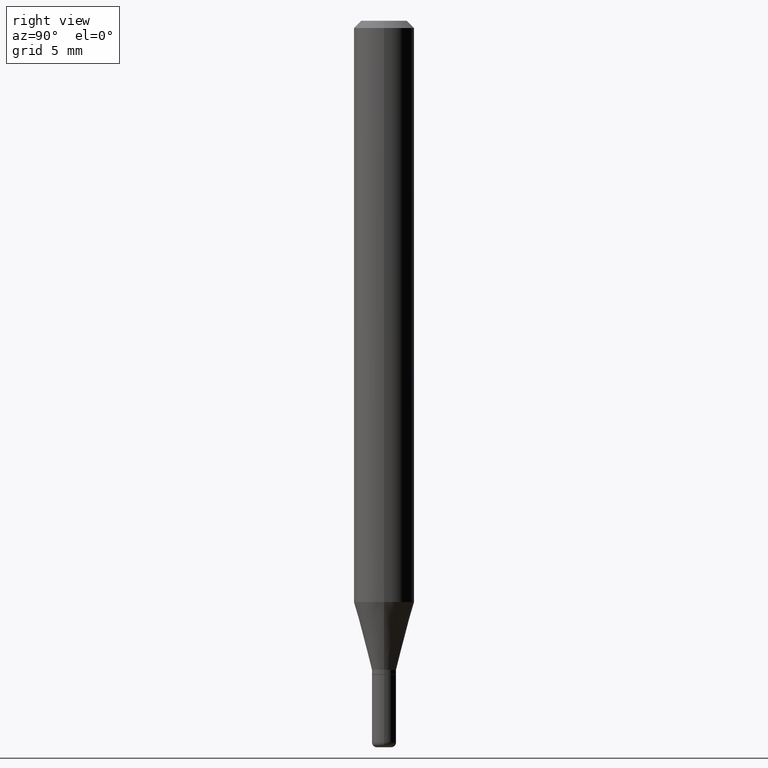
[diagram: clean part render]
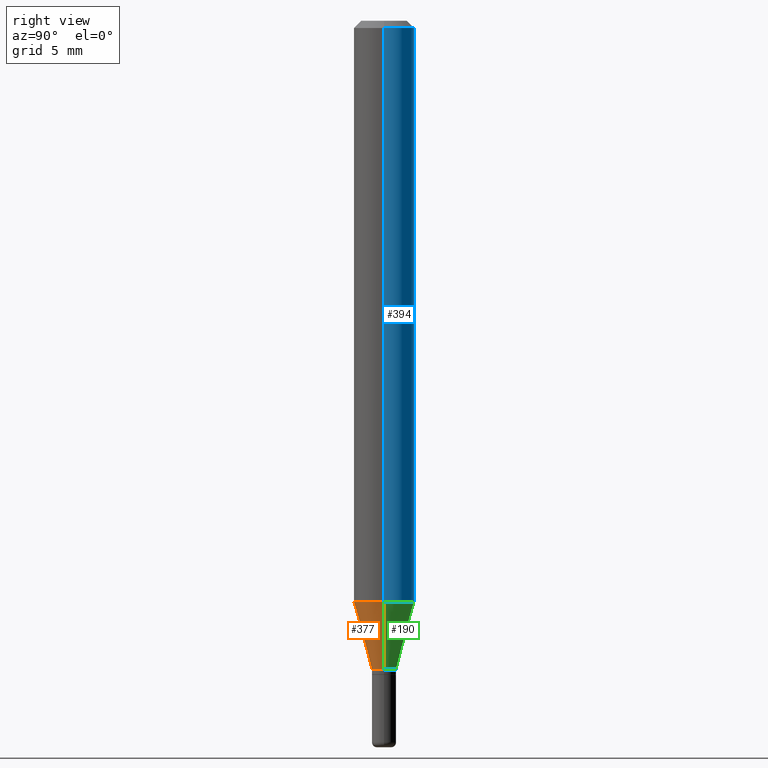
[diagram: same view with three faces highlighted in distinct colors, each labeled with its STEP entity id]
A machine part, right view with three faces highlighted in distinct colors.
Their STEP definitions:

[orange] entity #377 — the highlighted conical surface has half-angle 15 deg.
#11 = DIRECTION ( 'NONE',  ( -0.2588190451025205729, 5.211531920934544731E-15, 0.9659258262890682012 ) ) ;
#29 = CONICAL_SURFACE ( 'NONE', #345, 0.02499999999999996322, 0.2617993877991492968 ) ;
#46 = CARTESIAN_POINT ( 'NONE',  ( -0.06250000000000000000, -3.745856318565706082E-15, -1.200048094716167135 ) ) ;
#47 = ORIENTED_EDGE ( 'NONE', *, *, #264, .F. ) ;
#48 = CARTESIAN_POINT ( 'NONE',  ( 0.02499999999999996322, -4.853159060991972403E-15, -1.340000000000000080 ) ) ;
#53 = CARTESIAN_POINT ( 'NONE',  ( 3.276928200288083533E-29, -4.678584994049815735E-15, -1.340000000000000080 ) ) ;
#60 = EDGE_CURVE ( 'NONE', #292, #167, #499, .T. ) ;
#62 = DIRECTION ( 'NONE',  ( 1.000000000000000000, -6.982962677686265133E-15, 0.000000000000000000 ) ) ;
#68 = CARTESIAN_POINT ( 'NONE',  ( 2.934680181550293043E-29, -4.189945528415768698E-15, -1.200048094716167135 ) ) ;
#83 = AXIS2_PLACEMENT_3D ( 'NONE', #53, #132, #165 ) ;
#132 = DIRECTION ( 'NONE',  ( -2.445468806185136597E-29, 3.491481338843145583E-15, 1.000000000000000000 ) ) ;
#165 = DIRECTION ( 'NONE',  ( 1.000000000000000000, -6.982962677686265133E-15, 0.000000000000000000 ) ) ;
#167 = VERTEX_POINT ( 'NONE', #199 ) ;
#173 = CARTESIAN_POINT ( 'NONE',  ( -0.02499999999999996322, -4.123402814337748307E-15, -1.340000000000000080 ) ) ;
#199 = CARTESIAN_POINT ( 'NONE',  ( 0.06250000000000000000, -4.626380695771160368E-15, -1.200048094716167135 ) ) ;
#202 = LINE ( 'NONE', #48, #274 ) ;
#212 = VERTEX_POINT ( 'NONE', #330 ) ;
#221 = DIRECTION ( 'NONE',  ( -2.445468806185136597E-29, 3.491481338843145583E-15, 1.000000000000000000 ) ) ;
#222 = ORIENTED_EDGE ( 'NONE', *, *, #301, .T. ) ;
#251 = EDGE_LOOP ( 'NONE', ( #47, #222, #300, #485 ) ) ;
#264 = EDGE_CURVE ( 'NONE', #268, #292, #372, .T. ) ;
#268 = VERTEX_POINT ( 'NONE', #173 ) ;
#274 = VECTOR ( 'NONE', #403, 39.37007874015748854 ) ;
#286 = EDGE_CURVE ( 'NONE', #212, #167, #202, .T. ) ;
#292 = VERTEX_POINT ( 'NONE', #46 ) ;
#300 = ORIENTED_EDGE ( 'NONE', *, *, #286, .T. ) ;
#301 = EDGE_CURVE ( 'NONE', #268, #212, #307, .T. ) ;
#307 = CIRCLE ( 'NONE', #83, 0.02499999999999996322 ) ;
#322 = CARTESIAN_POINT ( 'NONE',  ( -0.02499999999999996322, -4.500949310109790531E-15, -1.340000000000000080 ) ) ;
#330 = CARTESIAN_POINT ( 'NONE',  ( 0.02499999999999996322, -4.853159060991972403E-15, -1.340000000000000080 ) ) ;
#345 = AXIS2_PLACEMENT_3D ( 'NONE', #424, #221, #62 ) ;
#372 = LINE ( 'NONE', #322, #386 ) ;
#377 = ADVANCED_FACE ( 'NONE', ( #457 ), #29, .T. ) ;
#386 = VECTOR ( 'NONE', #11, 39.37007874015748854 ) ;
#397 = DIRECTION ( 'NONE',  ( -2.445468806185136597E-29, 3.491481338843145583E-15, 1.000000000000000000 ) ) ;
#403 = DIRECTION ( 'NONE',  ( 0.2588190451025205729, 1.565188264969627490E-15, 0.9659258262890682012 ) ) ;
#424 = CARTESIAN_POINT ( 'NONE',  ( 3.276928200288083533E-29, -4.678584994049815735E-15, -1.340000000000000080 ) ) ;
#454 = AXIS2_PLACEMENT_3D ( 'NONE', #68, #397, #469 ) ;
#457 = FACE_OUTER_BOUND ( 'NONE', #251, .T. ) ;
#469 = DIRECTION ( 'NONE',  ( 1.000000000000000000, -6.982962677686262766E-15, 0.000000000000000000 ) ) ;
#485 = ORIENTED_EDGE ( 'NONE', *, *, #60, .F. ) ;
#499 = CIRCLE ( 'NONE', #454, 0.06250000000000000000 ) ;

[blue] entity #394 — the highlighted cylindrical surface (edge-blend (fillet) strip) has radius 1.5875 mm, axis along (-0, 0, 1).
#2 = EDGE_CURVE ( 'NONE', #167, #292, #369, .T. ) ;
#24 = EDGE_CURVE ( 'NONE', #292, #185, #58, .T. ) ;
#46 = CARTESIAN_POINT ( 'NONE',  ( -0.06250000000000000000, -3.745856318565706082E-15, -1.200048094716167135 ) ) ;
#54 = AXIS2_PLACEMENT_3D ( 'NONE', #318, #150, #350 ) ;
#58 = LINE ( 'NONE', #465, #214 ) ;
#89 = DIRECTION ( 'NONE',  ( -2.445468806185136877E-29, 3.491481338843145188E-15, 1.000000000000000000 ) ) ;
#100 = DIRECTION ( 'NONE',  ( 1.000000000000000000, -6.982962677686262766E-15, 0.000000000000000000 ) ) ;
#105 = DIRECTION ( 'NONE',  ( -2.445468806185136597E-29, 3.491481338843145583E-15, 1.000000000000000000 ) ) ;
#117 = EDGE_CURVE ( 'NONE', #371, #185, #328, .T. ) ;
#122 = CARTESIAN_POINT ( 'NONE',  ( -0.06250000000000000000, -1.677069664399144681E-15, -0.01499999999999970281 ) ) ;
#126 = CARTESIAN_POINT ( 'NONE',  ( 0.06250000000000000000, -4.364351673553916694E-16, 3.047610484872459871E-30 ) ) ;
#135 = ORIENTED_EDGE ( 'NONE', *, *, #24, .T. ) ;
#145 = ORIENTED_EDGE ( 'NONE', *, *, #117, .F. ) ;
#150 = DIRECTION ( 'NONE',  ( -2.445468806185136597E-29, 3.491481338843145583E-15, 1.000000000000000000 ) ) ;
#167 = VERTEX_POINT ( 'NONE', #199 ) ;
#178 = FACE_OUTER_BOUND ( 'NONE', #294, .T. ) ;
#179 = ORIENTED_EDGE ( 'NONE', *, *, #355, .F. ) ;
#185 = VERTEX_POINT ( 'NONE', #122 ) ;
#199 = CARTESIAN_POINT ( 'NONE',  ( 0.06250000000000000000, -4.626380695771160368E-15, -1.200048094716167135 ) ) ;
#214 = VECTOR ( 'NONE', #348, 39.37007874015748143 ) ;
#226 = CARTESIAN_POINT ( 'NONE',  ( 0.06250000000000000000, -4.888073874380378612E-16, -0.01499999999999970281 ) ) ;
#228 = CARTESIAN_POINT ( 'NONE',  ( 0.000000000000000000, 0.000000000000000000, 0.000000000000000000 ) ) ;
#269 = CYLINDRICAL_SURFACE ( 'NONE', #463, 0.06250000000000000000 ) ;
#292 = VERTEX_POINT ( 'NONE', #46 ) ;
#294 = EDGE_LOOP ( 'NONE', ( #445, #135, #145, #179 ) ) ;
#303 = CARTESIAN_POINT ( 'NONE',  ( 2.934680181550293043E-29, -4.189945528415768698E-15, -1.200048094716167135 ) ) ;
#318 = CARTESIAN_POINT ( 'NONE',  ( 3.668203209277632395E-31, -5.237222008264614861E-17, -0.01499999999999970281 ) ) ;
#328 = CIRCLE ( 'NONE', #54, 0.06250000000000000000 ) ;
#337 = DIRECTION ( 'NONE',  ( -2.445468806185136597E-29, 3.491481338843145583E-15, 1.000000000000000000 ) ) ;
#348 = DIRECTION ( 'NONE',  ( -2.445468806185136877E-29, 3.491481338843145188E-15, 1.000000000000000000 ) ) ;
#350 = DIRECTION ( 'NONE',  ( 1.000000000000000000, -6.982962677686266711E-15, 0.000000000000000000 ) ) ;
#355 = EDGE_CURVE ( 'NONE', #167, #371, #516, .T. ) ;
#369 = CIRCLE ( 'NONE', #501, 0.06250000000000000000 ) ;
#371 = VERTEX_POINT ( 'NONE', #226 ) ;
#374 = DIRECTION ( 'NONE',  ( 1.000000000000000000, -6.982962677686266711E-15, 4.876176775795935793E-29 ) ) ;
#394 = ADVANCED_FACE ( 'NONE', ( #178 ), #269, .T. ) ;
#421 = VECTOR ( 'NONE', #89, 39.37007874015748143 ) ;
#445 = ORIENTED_EDGE ( 'NONE', *, *, #2, .T. ) ;
#463 = AXIS2_PLACEMENT_3D ( 'NONE', #228, #337, #374 ) ;
#465 = CARTESIAN_POINT ( 'NONE',  ( -0.06250000000000000000, 4.440892098500626162E-16, -3.074334431409316114E-30 ) ) ;
#501 = AXIS2_PLACEMENT_3D ( 'NONE', #303, #105, #100 ) ;
#516 = LINE ( 'NONE', #126, #421 ) ;

[green] entity #190 — the highlighted conical surface has half-angle 15 deg.
#2 = EDGE_CURVE ( 'NONE', #167, #292, #369, .T. ) ;
#10 = EDGE_LOOP ( 'NONE', ( #425, #225, #408, #271 ) ) ;
#11 = DIRECTION ( 'NONE',  ( -0.2588190451025205729, 5.211531920934544731E-15, 0.9659258262890682012 ) ) ;
#46 = CARTESIAN_POINT ( 'NONE',  ( -0.06250000000000000000, -3.745856318565706082E-15, -1.200048094716167135 ) ) ;
#48 = CARTESIAN_POINT ( 'NONE',  ( 0.02499999999999996322, -4.853159060991972403E-15, -1.340000000000000080 ) ) ;
#88 = DIRECTION ( 'NONE',  ( 1.000000000000000000, -6.982962677686265133E-15, 0.000000000000000000 ) ) ;
#91 = CIRCLE ( 'NONE', #508, 0.02499999999999996322 ) ;
#100 = DIRECTION ( 'NONE',  ( 1.000000000000000000, -6.982962677686262766E-15, 0.000000000000000000 ) ) ;
#105 = DIRECTION ( 'NONE',  ( -2.445468806185136597E-29, 3.491481338843145583E-15, 1.000000000000000000 ) ) ;
#167 = VERTEX_POINT ( 'NONE', #199 ) ;
#173 = CARTESIAN_POINT ( 'NONE',  ( -0.02499999999999996322, -4.123402814337748307E-15, -1.340000000000000080 ) ) ;
#190 = ADVANCED_FACE ( 'NONE', ( #283 ), #461, .T. ) ;
#199 = CARTESIAN_POINT ( 'NONE',  ( 0.06250000000000000000, -4.626380695771160368E-15, -1.200048094716167135 ) ) ;
#202 = LINE ( 'NONE', #48, #274 ) ;
#212 = VERTEX_POINT ( 'NONE', #330 ) ;
#225 = ORIENTED_EDGE ( 'NONE', *, *, #264, .T. ) ;
#240 = AXIS2_PLACEMENT_3D ( 'NONE', #442, #277, #246 ) ;
#246 = DIRECTION ( 'NONE',  ( 1.000000000000000000, -6.982962677686265133E-15, 0.000000000000000000 ) ) ;
#264 = EDGE_CURVE ( 'NONE', #268, #292, #372, .T. ) ;
#268 = VERTEX_POINT ( 'NONE', #173 ) ;
#271 = ORIENTED_EDGE ( 'NONE', *, *, #286, .F. ) ;
#274 = VECTOR ( 'NONE', #403, 39.37007874015748854 ) ;
#277 = DIRECTION ( 'NONE',  ( -2.445468806185136597E-29, 3.491481338843145583E-15, 1.000000000000000000 ) ) ;
#283 = FACE_OUTER_BOUND ( 'NONE', #10, .T. ) ;
#286 = EDGE_CURVE ( 'NONE', #212, #167, #202, .T. ) ;
#292 = VERTEX_POINT ( 'NONE', #46 ) ;
#303 = CARTESIAN_POINT ( 'NONE',  ( 2.934680181550293043E-29, -4.189945528415768698E-15, -1.200048094716167135 ) ) ;
#322 = CARTESIAN_POINT ( 'NONE',  ( -0.02499999999999996322, -4.500949310109790531E-15, -1.340000000000000080 ) ) ;
#330 = CARTESIAN_POINT ( 'NONE',  ( 0.02499999999999996322, -4.853159060991972403E-15, -1.340000000000000080 ) ) ;
#341 = EDGE_CURVE ( 'NONE', #212, #268, #91, .T. ) ;
#369 = CIRCLE ( 'NONE', #501, 0.06250000000000000000 ) ;
#372 = LINE ( 'NONE', #322, #386 ) ;
#386 = VECTOR ( 'NONE', #11, 39.37007874015748854 ) ;
#403 = DIRECTION ( 'NONE',  ( 0.2588190451025205729, 1.565188264969627490E-15, 0.9659258262890682012 ) ) ;
#408 = ORIENTED_EDGE ( 'NONE', *, *, #2, .F. ) ;
#425 = ORIENTED_EDGE ( 'NONE', *, *, #341, .T. ) ;
#442 = CARTESIAN_POINT ( 'NONE',  ( 3.276928200288083533E-29, -4.678584994049815735E-15, -1.340000000000000080 ) ) ;
#443 = DIRECTION ( 'NONE',  ( -2.445468806185136597E-29, 3.491481338843145583E-15, 1.000000000000000000 ) ) ;
#450 = CARTESIAN_POINT ( 'NONE',  ( 3.276928200288083533E-29, -4.678584994049815735E-15, -1.340000000000000080 ) ) ;
#461 = CONICAL_SURFACE ( 'NONE', #240, 0.02499999999999996322, 0.2617993877991492968 ) ;
#501 = AXIS2_PLACEMENT_3D ( 'NONE', #303, #105, #100 ) ;
#508 = AXIS2_PLACEMENT_3D ( 'NONE', #450, #443, #88 ) ;